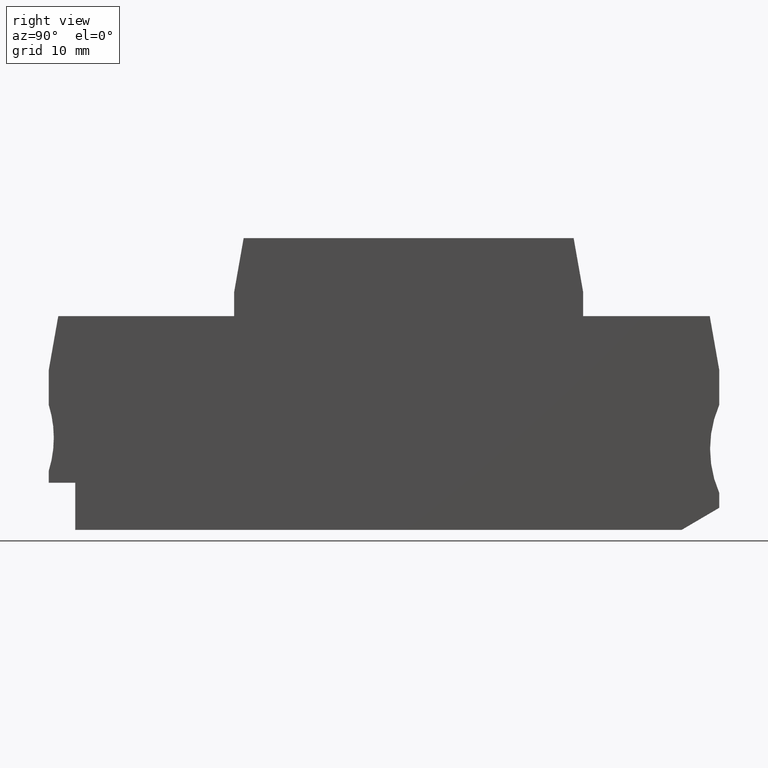
[diagram: clean part render]
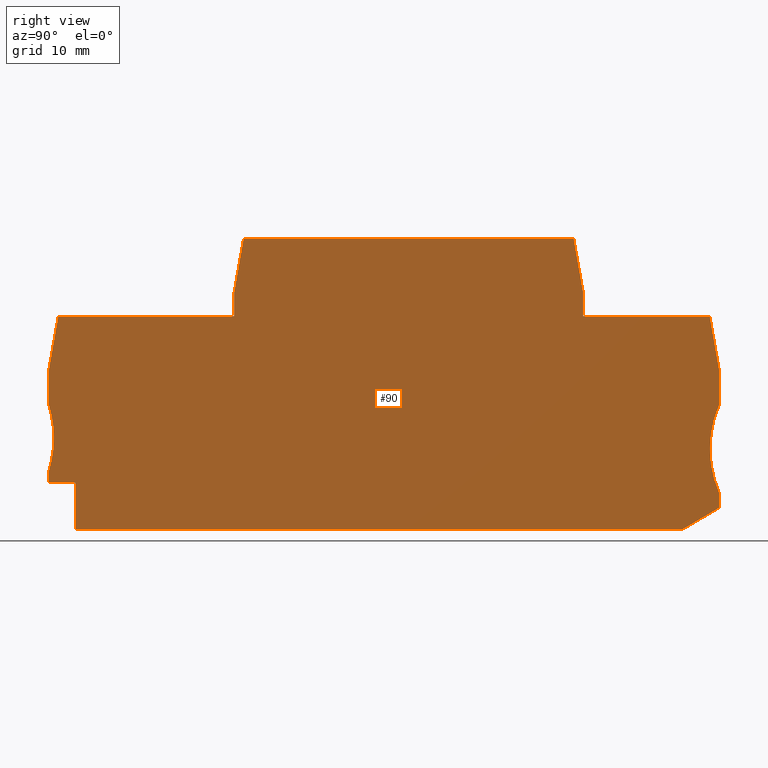
[diagram: same view with one face highlighted and labeled with its STEP entity id]
A machine part, right view. The second image highlights one B-rep face of the part: STEP entity #90.
In plain terms, the highlighted planar face has unit normal (-1, -0, 0).
Its self-contained STEP definition (entity closure, byte-faithful):
#90=ADVANCED_FACE('',(#175),#176,.F.);
#175=FACE_OUTER_BOUND('',#252,.T.);
#176=PLANE('',#253);
#252=EDGE_LOOP('',(#428,#429,#430,#431,#432,#433,#434,#435,#436,#437,#438,#439,#440,#441,#442,#443,#444,#445,#446,#447,#448));
#253=AXIS2_PLACEMENT_3D('',#449,#450,#451);
#428=ORIENTED_EDGE('',*,*,#482,.F.);
#429=ORIENTED_EDGE('',*,*,#561,.F.);
#430=ORIENTED_EDGE('',*,*,#534,.F.);
#431=ORIENTED_EDGE('',*,*,#558,.F.);
#432=ORIENTED_EDGE('',*,*,#543,.F.);
#433=ORIENTED_EDGE('',*,*,#552,.F.);
#434=ORIENTED_EDGE('',*,*,#495,.F.);
#435=ORIENTED_EDGE('',*,*,#504,.F.);
#436=ORIENTED_EDGE('',*,*,#527,.F.);
#437=ORIENTED_EDGE('',*,*,#518,.F.);
#438=ORIENTED_EDGE('',*,*,#511,.F.);
#439=ORIENTED_EDGE('',*,*,#489,.F.);
#440=ORIENTED_EDGE('',*,*,#485,.T.);
#441=ORIENTED_EDGE('',*,*,#500,.T.);
#442=ORIENTED_EDGE('',*,*,#508,.F.);
#443=ORIENTED_EDGE('',*,*,#515,.F.);
#444=ORIENTED_EDGE('',*,*,#523,.F.);
#445=ORIENTED_EDGE('',*,*,#530,.F.);
#446=ORIENTED_EDGE('',*,*,#540,.F.);
#447=ORIENTED_EDGE('',*,*,#548,.F.);
#448=ORIENTED_EDGE('',*,*,#554,.F.);
#449=CARTESIAN_POINT('',(2.2,38.169266881909,35.661519146161));
#450=DIRECTION('',(-1.0,-4.7037256739877E-017,2.46511816930322E-018));
#451=DIRECTION('',(-2.46511816930322E-018,4.85722573273506E-017,-1.0));
#482=EDGE_CURVE('',#571,#567,#573,.T.);
#485=EDGE_CURVE('',#578,#575,#579,.T.);
#489=EDGE_CURVE('',#578,#584,#585,.T.);
#495=EDGE_CURVE('',#593,#595,#596,.T.);
#500=EDGE_CURVE('',#575,#601,#603,.T.);
#504=EDGE_CURVE('',#607,#593,#609,.T.);
#508=EDGE_CURVE('',#613,#601,#615,.T.);
#511=EDGE_CURVE('',#584,#619,#620,.T.);
#515=EDGE_CURVE('',#623,#613,#626,.T.);
#518=EDGE_CURVE('',#619,#629,#630,.T.);
#523=EDGE_CURVE('',#635,#623,#638,.T.);
#527=EDGE_CURVE('',#629,#607,#642,.T.);
#530=EDGE_CURVE('',#644,#635,#647,.T.);
#534=EDGE_CURVE('',#650,#653,#654,.T.);
#540=EDGE_CURVE('',#661,#644,#663,.T.);
#543=EDGE_CURVE('',#665,#668,#669,.T.);
#548=EDGE_CURVE('',#674,#661,#677,.T.);
#552=EDGE_CURVE('',#595,#665,#681,.T.);
#554=EDGE_CURVE('',#567,#674,#683,.T.);
#558=EDGE_CURVE('',#668,#650,#687,.T.);
#561=EDGE_CURVE('',#653,#571,#690,.T.);
#567=VERTEX_POINT('',#696);
#571=VERTEX_POINT('',#701);
#573=CIRCLE('',#704,15.0);
#575=VERTEX_POINT('',#706);
#578=VERTEX_POINT('',#710);
#579=CIRCLE('',#711,15.0);
#584=VERTEX_POINT('',#717);
#585=LINE('',#718,#719);
#593=VERTEX_POINT('',#730);
#595=VERTEX_POINT('',#733);
#596=LINE('',#734,#735);
#601=VERTEX_POINT('',#741);
#603=CIRCLE('',#744,15.0);
#607=VERTEX_POINT('',#749);
#609=LINE('',#752,#753);
#613=VERTEX_POINT('',#758);
#615=LINE('',#761,#762);
#619=VERTEX_POINT('',#767);
#620=LINE('',#768,#769);
#623=VERTEX_POINT('',#773);
#626=LINE('',#777,#778);
#629=VERTEX_POINT('',#782);
#630=LINE('',#783,#784);
#635=VERTEX_POINT('',#791);
#638=LINE('',#795,#796);
#642=LINE('',#802,#803);
#644=VERTEX_POINT('',#805);
#647=LINE('',#809,#810);
#650=VERTEX_POINT('',#814);
#653=VERTEX_POINT('',#818);
#654=LINE('',#819,#820);
#661=VERTEX_POINT('',#830);
#663=LINE('',#833,#834);
#665=VERTEX_POINT('',#836);
#668=VERTEX_POINT('',#840);
#669=LINE('',#841,#842);
#674=VERTEX_POINT('',#849);
#677=LINE('',#853,#854);
#681=LINE('',#860,#861);
#683=CIRCLE('',#863,15.0);
#687=LINE('',#868,#869);
#690=LINE('',#873,#874);
#696=CARTESIAN_POINT('',(2.2,89.8977270988352,10.9999999999986));
#701=CARTESIAN_POINT('',(2.2,91.1500000139677,16.9999999999987));
#704=AXIS2_PLACEMENT_3D('',#883,#884,#885);
#706=CARTESIAN_POINT('',(2.19999999999999,0.690911992714305,12.5000000000046));
#710=CARTESIAN_POINT('',(2.2,1.39677993615805E-008,17.0000000000067));
#711=AXIS2_PLACEMENT_3D('',#887,#888,#889);
#717=CARTESIAN_POINT('',(2.2,1.39677993615805E-008,21.7000017510241));
#718=CARTESIAN_POINT('',(2.2,1.39677993615805E-008,38.2000000000068));
#719=VECTOR('',#894,1.0);
#730=CARTESIAN_POINT('',(2.2,26.4960027386844,39.6499999999919));
#733=CARTESIAN_POINT('',(2.2,71.3539967057631,39.6499999999919));
#734=CARTESIAN_POINT('',(2.2,61.6211162538102,39.6499999999919));
#735=VECTOR('',#899,1.0);
#741=CARTESIAN_POINT('',(2.2,0.0,7.9999999555878));
#744=AXIS2_PLACEMENT_3D('',#905,#906,#907);
#749=CARTESIAN_POINT('',(2.2,25.1999994304793,32.3000000000039));
#752=CARTESIAN_POINT('',(2.2,26.2403286166598,38.2000000000068));
#753=VECTOR('',#910,1.0);
#758=CARTESIAN_POINT('',(2.2,0.0,6.4000000000067));
#761=CARTESIAN_POINT('',(2.2,0.0,38.2000000000068));
#762=VECTOR('',#913,1.0);
#767=CARTESIAN_POINT('',(2.2,1.296003013423,29.0500000000043));
#768=CARTESIAN_POINT('',(2.2,2.9093948869058,38.2000000000068));
#769=VECTOR('',#915,1.0);
#773=CARTESIAN_POINT('',(2.2,3.5999996912634,6.4000000000064));
#777=CARTESIAN_POINT('',(2.2,61.6211162538102,6.4000000000012));
#778=VECTOR('',#918,1.0);
#782=CARTESIAN_POINT('',(2.2,25.1999994304793,29.0499999999902));
#783=CARTESIAN_POINT('',(2.2,61.6211162538102,29.0499999999688));
#784=VECTOR('',#920,1.0);
#791=CARTESIAN_POINT('',(2.2,3.5999996912628,-1.98951966012828E-013));
#795=CARTESIAN_POINT('',(2.2,3.5999996912662,38.2000000000068));
#796=VECTOR('',#924,1.0);
#802=CARTESIAN_POINT('',(2.2,25.1999994304793,38.2000000000068));
#803=VECTOR('',#927,1.0);
#805=CARTESIAN_POINT('',(2.2,86.0450575334422,-1.98951966012828E-013));
#809=CARTESIAN_POINT('',(2.2,61.6211162538102,-1.98951966012828E-013));
#810=VECTOR('',#929,1.0);
#814=CARTESIAN_POINT('',(2.2,89.8539963970262,29.0499999999983));
#818=CARTESIAN_POINT('',(2.2,91.1500000139677,21.6999982490788));
#819=CARTESIAN_POINT('',(2.2,88.2406045235422,38.2000000000068));
#820=VECTOR('',#932,1.0);
#830=CARTESIAN_POINT('',(2.2,91.1500000139677,2.999865465265));
#833=CARTESIAN_POINT('',(2.2,61.6211162538102,-14.3524708162613));
#834=VECTOR('',#937,1.0);
#836=CARTESIAN_POINT('',(2.2,72.6500000139878,32.2999999998926));
#840=CARTESIAN_POINT('',(2.2,72.6500000139878,29.0499999999983));
#841=CARTESIAN_POINT('',(2.2,72.6500000139878,38.2000000000068));
#842=VECTOR('',#939,1.0);
#849=CARTESIAN_POINT('',(2.2,91.1500000139677,4.9999999999986));
#853=CARTESIAN_POINT('',(2.2,91.1500000139677,38.2000000000068));
#854=VECTOR('',#943,1.0);
#860=CARTESIAN_POINT('',(2.2,71.6096708277877,38.2000000000068));
#861=VECTOR('',#946,1.0);
#863=AXIS2_PLACEMENT_3D('',#947,#948,#949);
#868=CARTESIAN_POINT('',(2.2,61.6211162538102,29.0499999999983));
#869=VECTOR('',#954,1.0);
#873=CARTESIAN_POINT('',(2.2,91.1500000139677,38.2000000000068));
#874=VECTOR('',#956,1.0);
#883=CARTESIAN_POINT('',(2.2,104.897727098835,10.9999999999986));
#884=DIRECTION('',(1.0,4.7037256739877E-017,-2.46511816930322E-018));
#885=DIRECTION('',(-4.7037256739877E-017,1.0,4.85722573273506E-017));
#887=CARTESIAN_POINT('',(2.2,-14.3090880072857,12.5000000000046));
#888=DIRECTION('',(-1.0,-4.7037256739877E-017,2.46511816930322E-018));
#889=DIRECTION('',(4.7037256739877E-017,-1.0,-4.85722573273506E-017));
#894=DIRECTION('',(2.46511816930322E-018,-4.85722573273506E-017,1.0));
#899=DIRECTION('',(-4.7037256739877E-017,1.0,4.85722573273506E-017));
#905=CARTESIAN_POINT('',(2.2,-14.3090880072857,12.5000000000046));
#906=DIRECTION('',(-1.0,-4.7037256739877E-017,2.46511816930322E-018));
#907=DIRECTION('',(4.7037256739877E-017,-1.0,-4.85722573273506E-017));
#910=DIRECTION('',(-5.74026643011009E-018,0.17364817766693,0.984807753012208));
#913=DIRECTION('',(2.46511816930322E-018,-2.0446619030417E-018,1.0));
#915=DIRECTION('',(-5.7402664301099E-018,0.173648177666926,0.984807753012209));
#918=DIRECTION('',(4.70372567398772E-017,-1.0,8.99995757206863E-014));
#920=DIRECTION('',(-4.70372567398784E-017,1.0,-5.88156992698175E-013));
#924=DIRECTION('',(2.46511816929899E-018,8.99995757206863E-014,1.0));
#927=DIRECTION('',(2.46511816930322E-018,-4.85722573273506E-017,1.0));
#929=DIRECTION('',(4.7037256739877E-017,-1.0,-4.85722573273506E-017));
#932=DIRECTION('',(-1.05956014005522E-017,0.17364817766693,-0.984807753012208));
#937=DIRECTION('',(3.93046538213499E-017,-0.862158641431198,-0.506638408537598));
#939=DIRECTION('',(-2.46511816930363E-018,8.79371362082641E-015,-1.0));
#943=DIRECTION('',(-2.46511816930322E-018,4.85722573273506E-017,-1.0));
#946=DIRECTION('',(-1.05956014005523E-017,0.173648177666931,-0.984807753012208));
#947=CARTESIAN_POINT('',(2.2,104.897727098835,10.9999999999986));
#948=DIRECTION('',(1.0,4.7037256739877E-017,-2.46511816930322E-018));
#949=DIRECTION('',(-4.7037256739877E-017,1.0,4.85722573273506E-017));
#954=DIRECTION('',(-4.7037256739877E-017,1.0,4.85722573273506E-017));
#956=DIRECTION('',(-2.46511816930322E-018,4.85722573273506E-017,-1.0));